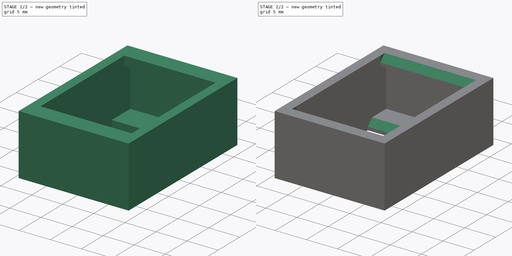
[diagram: build sequence overview — one tinted view per stage of 2, left to right]
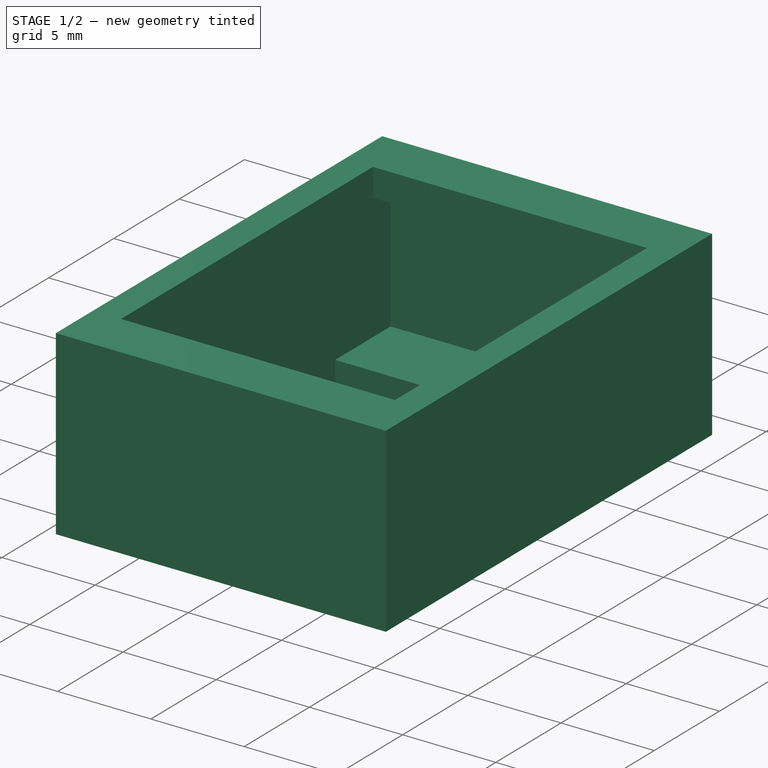
[diagram: stage 1 of 2 — iso view after this stage's code; geometry added in this stage tinted green]
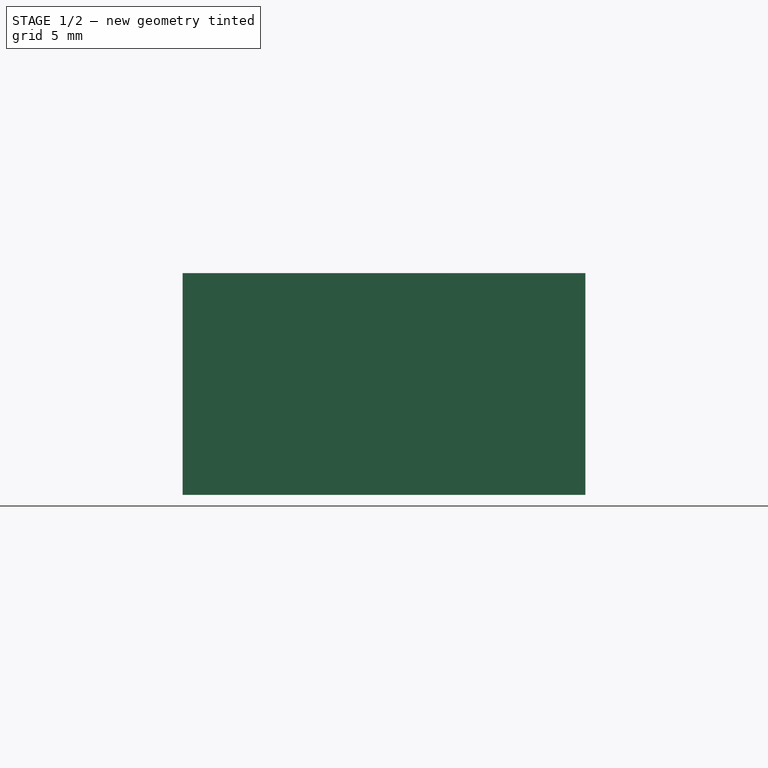
[diagram: stage 1 of 2 — front view after this stage's code; geometry added in this stage tinted green]
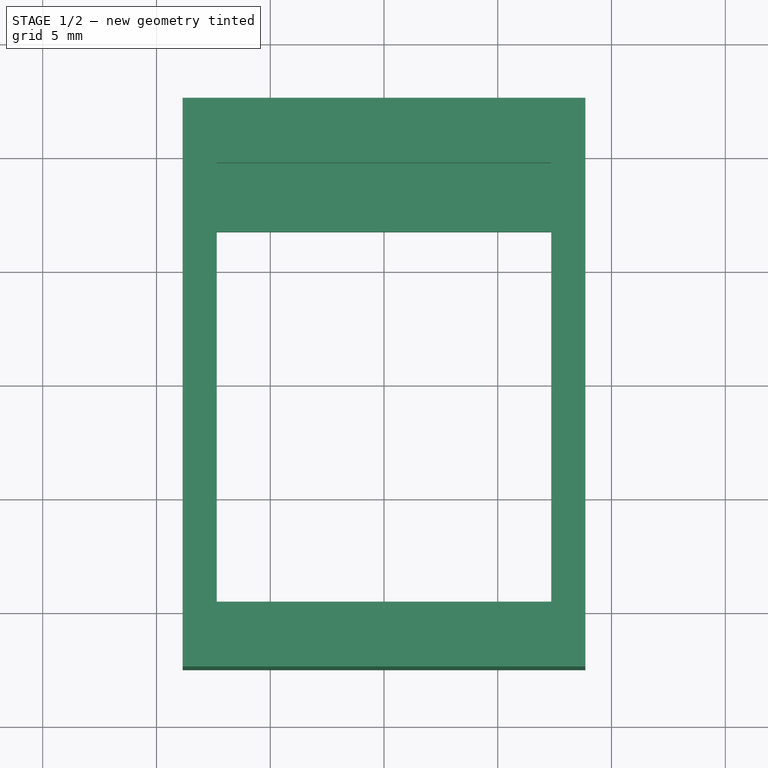
[diagram: stage 1 of 2 — top view after this stage's code; geometry added in this stage tinted green]
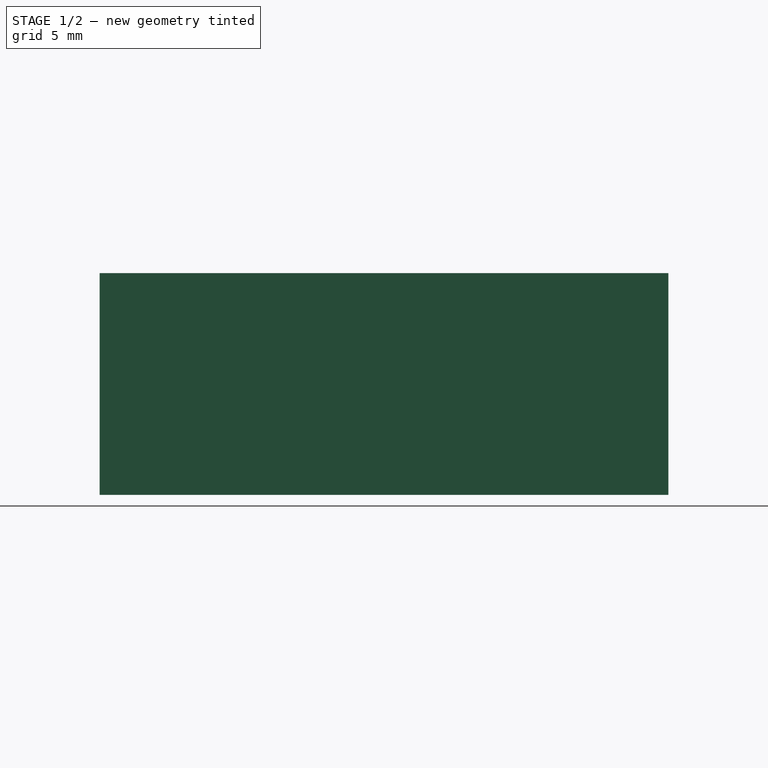
[diagram: stage 1 of 2 — right view after this stage's code; geometry added in this stage tinted green]
FCSTD DOCUMENT  (FreeCAD 2023.131R26244 +5365 (Git))
Label: RJ45 Keystone Connector
License: All rights reserved
LicenseURL: http://en.wikipedia.org/wiki/All_rights_reserved
objects: Sketcher::SketchObject×2, PartDesign::Pad×2, Spreadsheet::Sheet×1, PartDesign::Chamfer×1, PartDesign::Body×1
note: 14 computed .brp shape members not serialized (recipe doc carries the construction recipe); baked Part::Feature solids carry a one-line shape summary decoded from their .brp

FEATURE [Spreadsheet::Sheet] Spreadsheet  label="Parameters"
  PythonMode = false
  ShowCells = 0
  TreeRank = 1
  cells = A1=RJ45 Coupler Width; B1(RJ45_Coupler_Width)=17.7; A2=RJ45 Coupler Height; B2(RJ45_Coupler_Height)=25; A3=RJ45 Coupler Depth; B3(RJ45_Coupler_Depth)=9.75; A4=RJ45 Coupler Side Thickness; B4(RJ45_Coupler_Thickness)=1.5; A5=RJ45 Coupler Small Overhang; B5(RJ45_Small_Overhang)=1.35; A6=RJ45 Coupler Large Overhang; B6(RJ45_Large_Overhang)=4.25
FEATURE [Sketcher::SketchObject] Sketch013
  ArcFitTolerance = 1e-06
  AttachmentSupport = -> [XY_Plane001]
  ExternalBSplineMaxDegree = 5
  ExternalBSplineTolerance = 0.0001
  FullyConstrained = true
  InternalTolerance = 1e-06
  InvalidShape = false
  MakeInternals = false
  MapMode = 5
  Support = -> [XY_Plane001]
  TreeRank = 68
  ValidateShape = true
  expr: Constraints[10] = <<Parameters>>.RJ45_Coupler_Height
  expr: Constraints[11] = <<Parameters>>.RJ45_Coupler_Width
  expr: Constraints[22] = <<Parameters>>.RJ45_Coupler_Height - 2 * <<Parameters>>.RJ45_Coupler_Thickness
  expr: Constraints[23] = <<Parameters>>.RJ45_Coupler_Width - 2 * <<Parameters>>.RJ45_Coupler_Thickness
  sketch-geometry (10):
    g0: LineSegment StartX=8.85 StartY=-12.5 StartZ=0 EndX=8.85 EndY=12.5 EndZ=0
    g1: LineSegment StartX=8.85 StartY=12.5 StartZ=0 EndX=-8.85 EndY=12.5 EndZ=0
    g2: LineSegment StartX=-8.85 StartY=12.5 StartZ=0 EndX=-8.85 EndY=-12.5 EndZ=0
    g3: LineSegment StartX=-8.85 StartY=-12.5 StartZ=0 EndX=8.85 EndY=-12.5 EndZ=0
    g4: GeomPoint [constr] X=0 Y=0 Z=0
    g5: LineSegment StartX=7.35 StartY=-11 StartZ=0 EndX=7.35 EndY=11 EndZ=0
    g6: LineSegment StartX=7.35 StartY=11 StartZ=0 EndX=-7.35 EndY=11 EndZ=0
    g7: LineSegment StartX=-7.35 StartY=11 StartZ=0 EndX=-7.35 EndY=-11 EndZ=0
    g8: LineSegment StartX=-7.35 StartY=-11 StartZ=0 EndX=7.35 EndY=-11 EndZ=0
    g9: GeomPoint [constr] X=0 Y=0 Z=0
  constraints (24):
    c: Coincident(g0,g1)
    c: Coincident(g1,g2)
    c: Coincident(g2,g3)
    c: Coincident(g3,g0)
    c: Horizontal(g1)
    c: Horizontal(g3)
    c: Vertical(g0)
    c: Vertical(g2)
    c: Symmetric(g1,g0,g4)
    c: Coincident(g4,g-1)
    c: Distance(g0,g0) = 25
    c: Distance(g2,g0) = 17.7
    c: Coincident(g5,g6)
    c: Coincident(g6,g7)
    c: Coincident(g7,g8)
    c: Coincident(g8,g5)
    c: Horizontal(g6)
    c: Horizontal(g8)
    c: Vertical(g5)
    c: Vertical(g7)
    c: Symmetric(g6,g5,g9)
    c: Coincident(g9,g4)
    c: Distance(g5,g5) = 22
    c: Distance(g7,g5) = 14.7
FEATURE [PartDesign::Pad] Pad001  label="Box"
  AddSubType = 0
  AlongSketchNormal = false
  AutoTaperInnerAngle = true
  CheckUpToFaceLimits = true
  ClaimChildren = false
  Direction = (0,0,1)
  Fit = 0
  FitJoin = 0
  InnerFit = 0
  InnerFitJoin = 0
  InvalidShape = false
  Length = 9.75
  Length2 = 100
  Linearize = true
  NewSolid = false
  Profile = -> Sketch013
  Suppress = false
  TaperInnerAngle = 0
  TaperInnerAngleRev = 0
  TreeRank = 69
  Type = 0
  ValidateShape = true
  _ProfileBasedVersion = 1
  expr: Length = <<Parameters>>.RJ45_Coupler_Depth
FEATURE [Sketcher::SketchObject] Sketch014
  ArcFitTolerance = 1e-06
  AttachmentSupport = -> [Pad001]
  ExternalBSplineMaxDegree = 5
  ExternalBSplineTolerance = 0.0001
  FullyConstrained = true
  InternalTolerance = 1e-06
  InvalidShape = false
  MakeInternals = false
  MapMode = 5
  Placement = pos=(-7.35,0,0) rot=(0.57735,0.57735,0.57735;2.0944rad)
  Support = -> [Pad001]
  TreeRank = 70
  ValidateShape = true
  expr: Constraints[10] = <<Parameters>>.RJ45_Small_Overhang
  expr: Constraints[11] = <<Parameters>>.RJ45_Coupler_Height / 2 - <<Parameters>>.RJ45_Small_Overhang - <<Parameters>>.RJ45_Coupler_Thickness
  expr: Constraints[22] = <<Parameters>>.RJ45_Coupler_Height / 2 - <<Parameters>>.RJ45_Small_Overhang - <<Parameters>>.RJ45_Coupler_Thickness
  expr: Constraints[23] = <<Parameters>>.RJ45_Coupler_Depth - <<Parameters>>.RJ45_Coupler_Thickness
  expr: Constraints[34] = <<Parameters>>.RJ45_Coupler_Height / 2 - <<Parameters>>.RJ45_Small_Overhang - <<Parameters>>.RJ45_Coupler_Thickness
  expr: Constraints[35] = <<Parameters>>.RJ45_Coupler_Depth - <<Parameters>>.RJ45_Coupler_Thickness
  expr: Constraints[46] = <<Parameters>>.RJ45_Large_Overhang
  expr: Constraints[47] = <<Parameters>>.RJ45_Coupler_Height / 2 - <<Parameters>>.RJ45_Large_Overhang - <<Parameters>>.RJ45_Coupler_Thickness
  expr: Constraints[9] = <<Parameters>>.RJ45_Coupler_Thickness
  sketch-geometry (16):
    g0: LineSegment StartX=-11 StartY=0 StartZ=0 EndX=-9.65 EndY=0 EndZ=0
    g1: LineSegment StartX=-9.65 StartY=0 StartZ=0 EndX=-9.65 EndY=1.5 EndZ=0
    g2: LineSegment StartX=-9.65 StartY=1.5 StartZ=0 EndX=-11 EndY=1.5 EndZ=0
    g3: LineSegment StartX=-11 StartY=1.5 StartZ=0 EndX=-11 EndY=0 EndZ=0
    g4: LineSegment StartX=-11 StartY=9.75 StartZ=0 EndX=-9.65 EndY=9.75 EndZ=0
    g5: LineSegment StartX=-9.65 StartY=9.75 StartZ=0 EndX=-9.65 EndY=8.25 EndZ=0
    g6: LineSegment StartX=-9.65 StartY=8.25 StartZ=0 EndX=-11 EndY=8.25 EndZ=0
    g7: LineSegment StartX=-11 StartY=8.25 StartZ=0 EndX=-11 EndY=9.75 EndZ=0
    g8: LineSegment StartX=11 StartY=9.75 StartZ=0 EndX=9.65 EndY=9.75 EndZ=0
    g9: LineSegment StartX=9.65 StartY=9.75 StartZ=0 EndX=9.65 EndY=8.25 EndZ=0
    g10: LineSegment StartX=9.65 StartY=8.25 StartZ=0 EndX=11 EndY=8.25 EndZ=0
    g11: LineSegment StartX=11 StartY=8.25 StartZ=0 EndX=11 EndY=9.75 EndZ=0
    g12: LineSegment StartX=11 StartY=0 StartZ=0 EndX=6.75 EndY=0 EndZ=0
    g13: LineSegment StartX=6.75 StartY=0 StartZ=0 EndX=6.75 EndY=1.5 EndZ=0
    g14: LineSegment StartX=6.75 StartY=1.5 StartZ=0 EndX=11 EndY=1.5 EndZ=0
    g15: LineSegment StartX=11 StartY=1.5 StartZ=0 EndX=11 EndY=0 EndZ=0
  constraints (48):
    c: Coincident(g0,g1)
    c: Coincident(g1,g2)
    c: Coincident(g2,g3)
    c: Coincident(g3,g0)
    c: Horizontal(g0)
    c: Horizontal(g2)
    c: Vertical(g1)
    c: Vertical(g3)
    c: PointOnObject(g0,g-1)
    c: Distance(g0,g1) = 1.5
    c: Distance(g0) = 1.35
    c: DistanceX(g0,g-1) = 9.65
    c: Coincident(g4,g5)
    c: Coincident(g5,g6)
    c: Coincident(g6,g7)
    c: Coincident(g7,g4)
    c: Horizontal(g4)
    c: Horizontal(g6)
    c: Vertical(g5)
    c: Vertical(g7)
    c: Equal(g2,g6)
    c: Equal(g1,g5)
    c: DistanceX(g5,g-1) = 9.65
    c: DistanceY(g-1,g5) = 8.25
    c: Coincident(g8,g9)
    c: Coincident(g9,g10)
    c: Coincident(g10,g11)
    c: Coincident(g11,g8)
    c: Horizontal(g8)
    c: Horizontal(g10)
    c: Vertical(g9)
    c: Vertical(g11)
    c: Equal(g2,g10)
    c: Equal(g1,g9)
    c: DistanceX(g-1,g9) = 9.65
    c: DistanceY(g-1,g9) = 8.25
    c: Coincident(g12,g13)
    c: Coincident(g13,g14)
    c: Coincident(g14,g15)
    c: Coincident(g15,g12)
    c: Horizontal(g12)
    c: Horizontal(g14)
    c: Vertical(g13)
    c: Vertical(g15)
    c: PointOnObject(g12,g-1)
    c: Equal(g1,g13)
    c: Distance(g14) = 4.25
    c: DistanceX(g-1,g12) = 6.75
FEATURE [PartDesign::Pad] Pad002  label="Overhangs"
  AddSubType = 0
  AlongSketchNormal = false
  AutoTaperInnerAngle = true
  BaseFeature = -> Pad001
  CheckUpToFaceLimits = true
  ClaimChildren = false
  Direction = (1,0,0)
  Fit = 0
  FitJoin = 0
  InnerFit = 0
  InnerFitJoin = 0
  InvalidShape = false
  Length = 14.7
  Length2 = 100
  Linearize = true
  NewSolid = false
  Profile = -> Sketch014
  Suppress = false
  TaperInnerAngle = 0
  TaperInnerAngleRev = 0
  TreeRank = 71
  Type = 0
  ValidateShape = true
  _ProfileBasedVersion = 1
  expr: Length = <<Parameters>>.RJ45_Coupler_Width - 2 * <<Parameters>>.RJ45_Coupler_Thickness
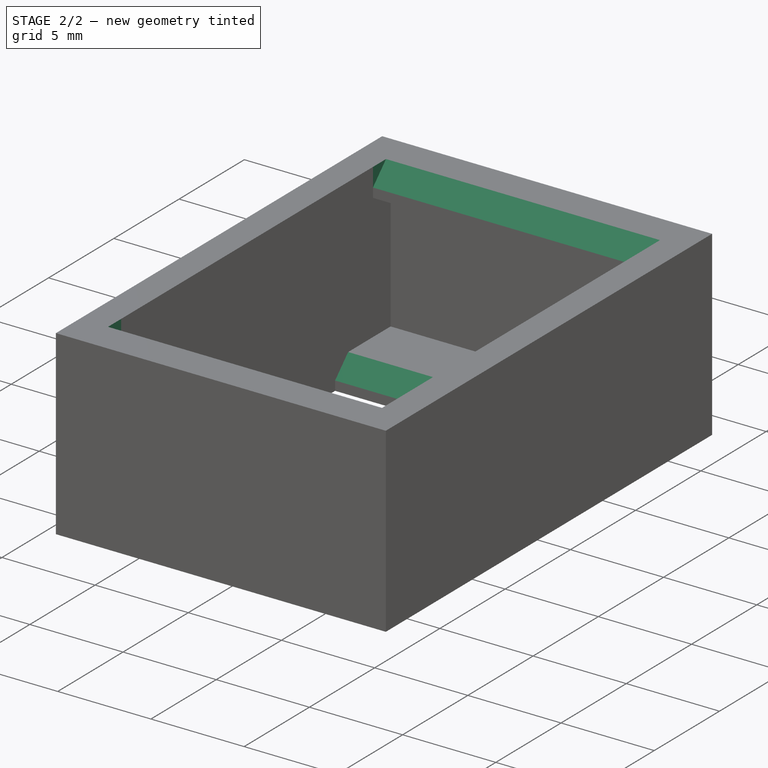
[diagram: stage 2 of 2 — iso view after this stage's code; geometry added in this stage tinted green]
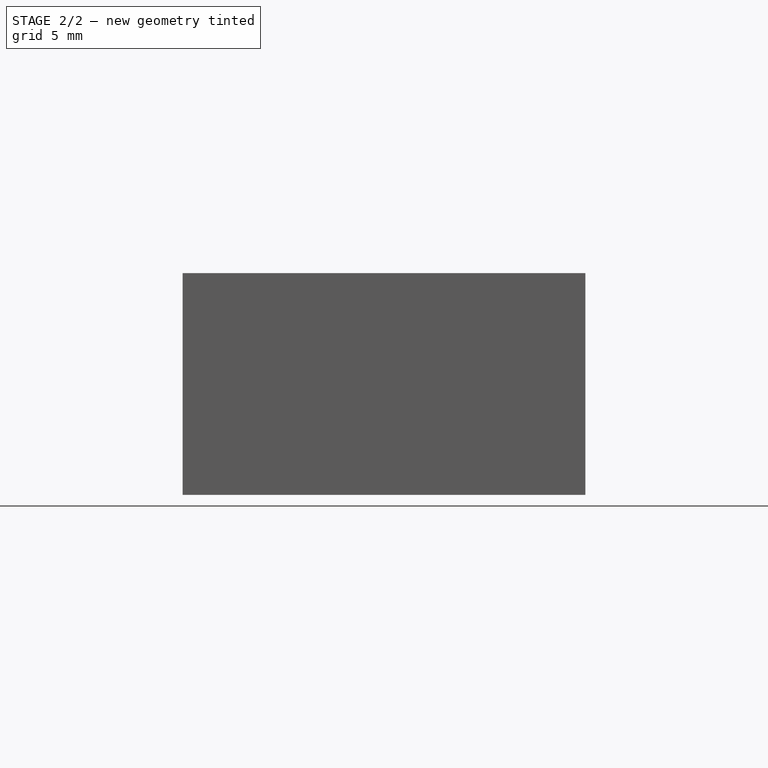
[diagram: stage 2 of 2 — front view after this stage's code; geometry added in this stage tinted green]
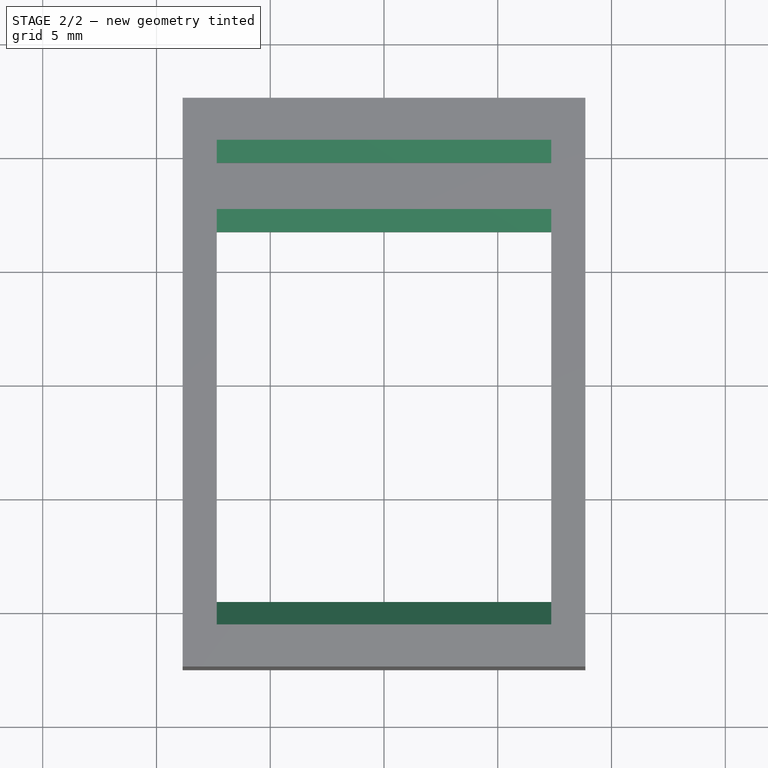
[diagram: stage 2 of 2 — top view after this stage's code; geometry added in this stage tinted green]
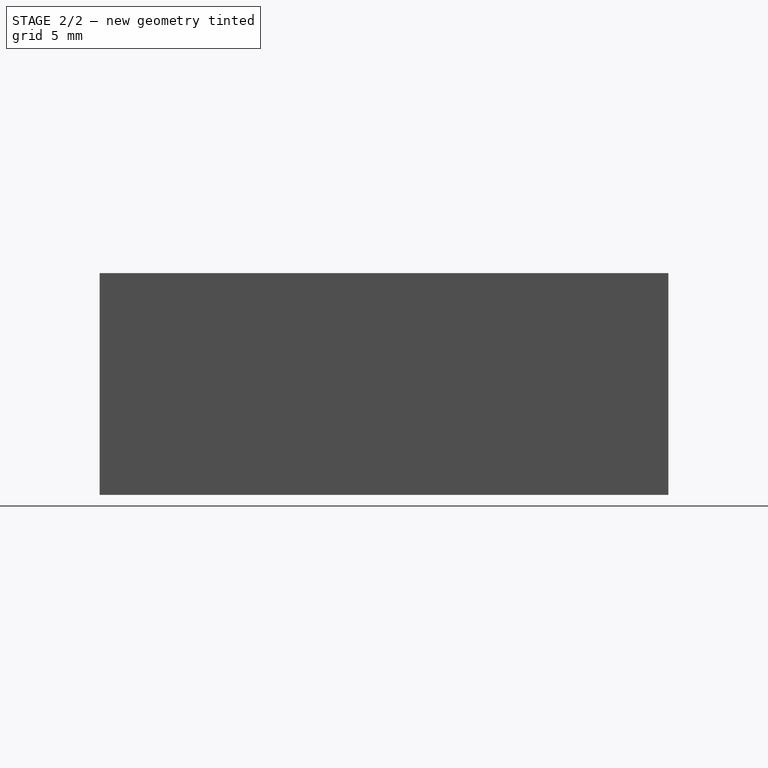
[diagram: stage 2 of 2 — right view after this stage's code; geometry added in this stage tinted green]
FEATURE [PartDesign::Chamfer] Chamfer  label="Overhang Chamfer"
  AddSubType = 0
  Angle = 45
  Base = -> Pad002 [Edge51,Edge52,Edge55]
  BaseFeature = -> Pad002
  ChamferType = 0
  FlipDirection = false
  InvalidShape = false
  NewSolid = false
  Size = 1
  Size2 = 1
  SupportTransform = false
  Suppress = false
  TreeRank = 72
  ValidateShape = true
FEATURE [PartDesign::Body] Body001  label="RJ45 Coupler"
  AutoGroupSolids = false
  ClaimAllChildren = false
  ExportMode = 0
  Group = -> [Sketch013,Pad001,Sketch014,Pad002,Chamfer]
  InvalidShape = false
  Origin = -> Origin001
  Tip = -> Chamfer
  TreeRank = 67
  ValidateShape = true
  _ExportChildren = -> [Pad001,Pad002,Chamfer]
  _GroupVersion = 1
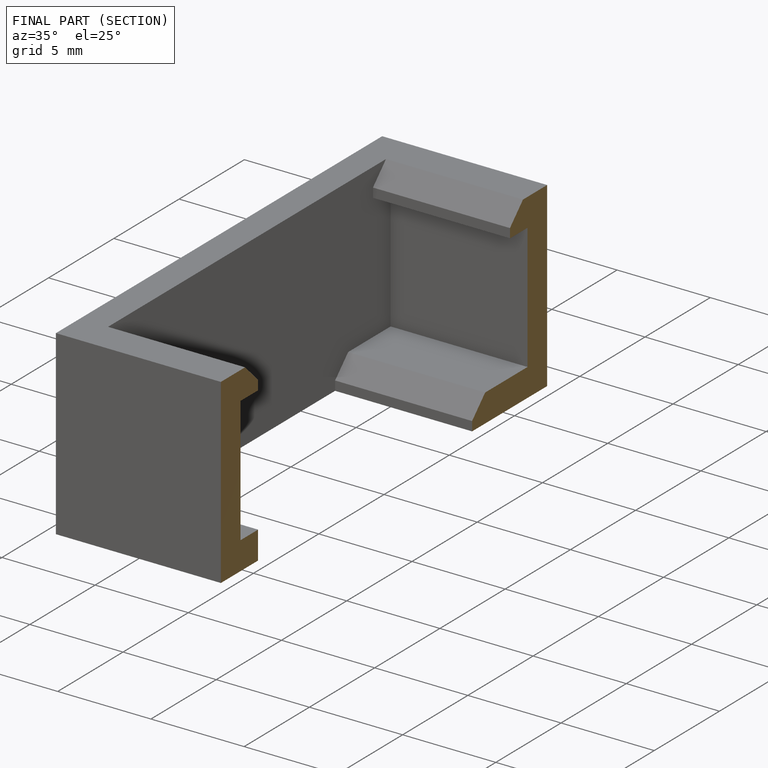
[diagram: finished part — half-section view (interior)]
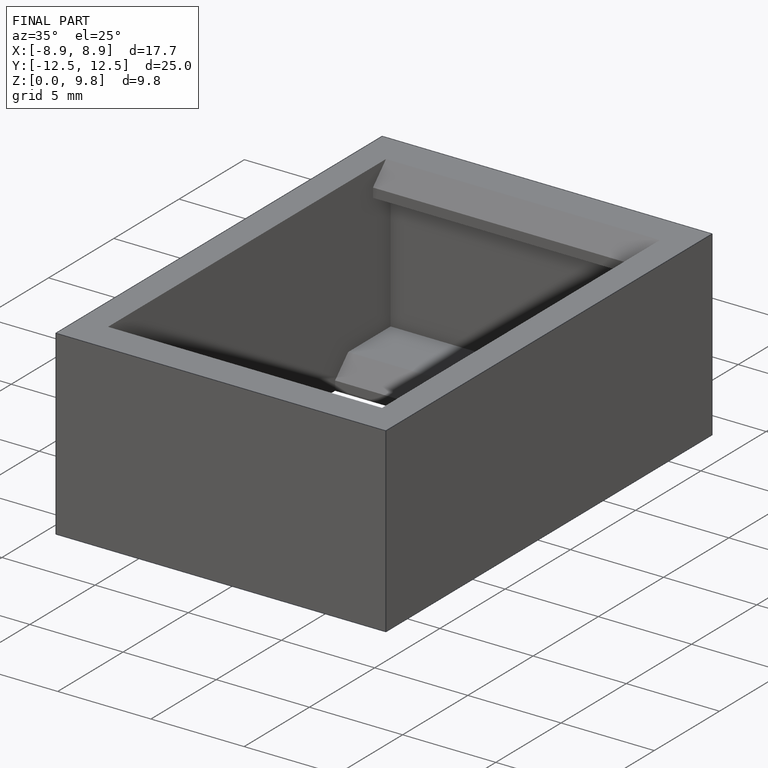
[diagram: finished part — iso view with bounding-box wireframe]
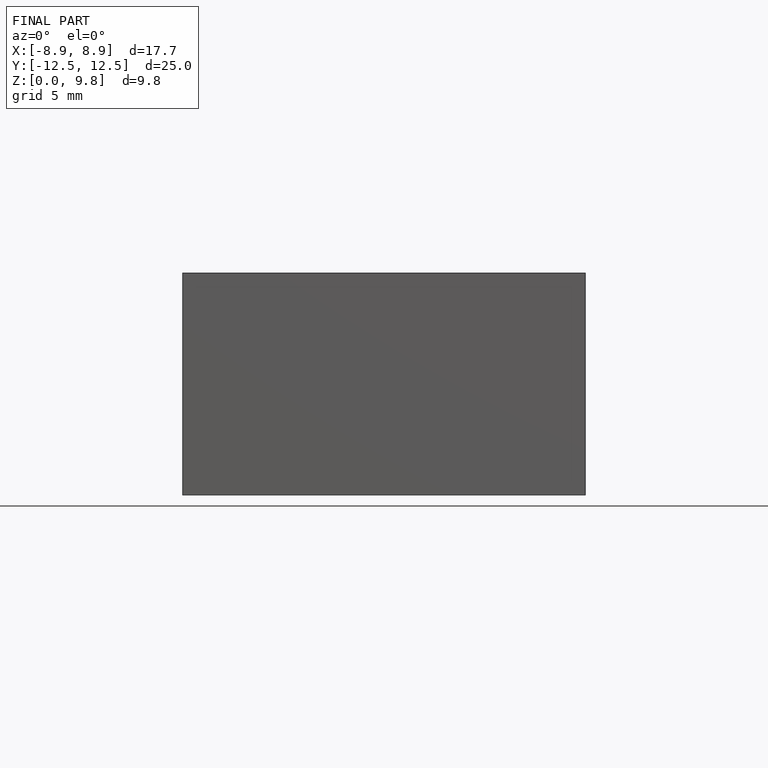
[diagram: finished part — front view with bounding-box wireframe]
